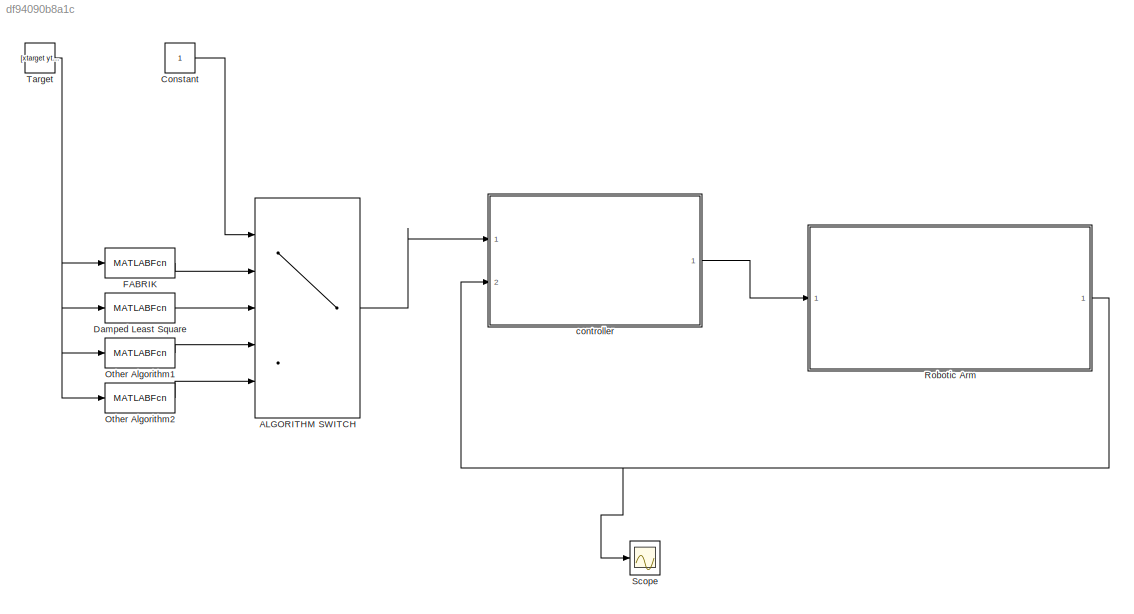
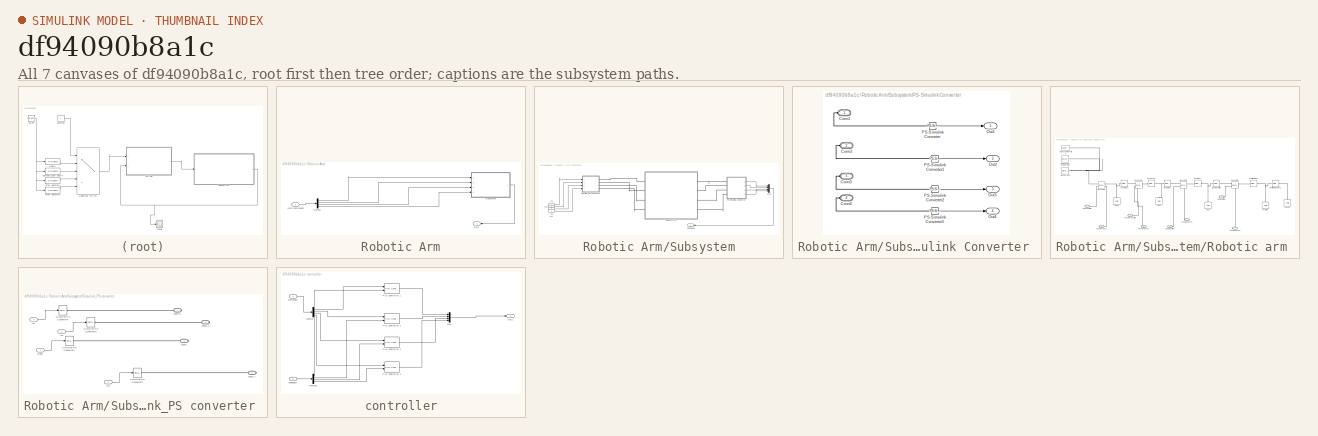
[diagram: thumbnail index - all 7 canvases of the model, root first then tree order]
MODEL slx_df94090b8a1c
KIND model
CONFIG AbsTol = auto
CONFIG EnableMultiTasking = off
CONFIG FixedStep = auto
CONFIG MaxStep = auto
CONFIG MinStep = auto
CONFIG RelTol = 1e-3
CONFIG SampleTimeConstraint = Unconstrained
CONFIG Solver = VariableStepAuto
CONFIG SolverName = VariableStepAuto
CONFIG StartTime = 0.0
CONFIG StopTime = 10.0
BLOCK [MultiPortSwitch] ALGORITHM SWITCH 
  InputSameDT = off
  Inputs = 4
  Ports = [5, 1]
  SaturateOnIntegerOverflow = off
BLOCK [Constant] Constant
BLOCK [MATLABFcn] Damped Least Square
  MATLABFcn = dampedLeastSquare
  Output1D = off
  OutputDimensions = 4
  Ports = [1, 1]
BLOCK [MATLABFcn] FABRIK 
  MATLABFcn = fcn
  Output1D = off
  OutputDimensions = 4
  Ports = [1, 1]
BLOCK [MATLABFcn] Other Algorithm1
  MATLABFcn = fcn
  Output1D = off
  OutputDimensions = 4
  Ports = [1, 1]
BLOCK [MATLABFcn] Other Algorithm2
  MATLABFcn = fcn
  Output1D = off
  OutputDimensions = 4
  Ports = [1, 1]
BLOCK [SubSystem] Robotic Arm
  Ports = [1, 1]
  RequestExecContextInheritance = off
BLOCK [Demux] Robotic Arm/Demux
  DisplayOption = bar
  Ports = [1, 4]
BLOCK [Outport] Robotic Arm/Out1
  IconDisplay = Port number
BLOCK [SubSystem] Robotic Arm/Subsystem
  Ports = [4, 1]
  RequestExecContextInheritance = off
BLOCK [Inport] Robotic Arm/Subsystem/In1
  IconDisplay = Port number
BLOCK [Inport] Robotic Arm/Subsystem/In2
  IconDisplay = Port number
  Port = 2
BLOCK [Inport] Robotic Arm/Subsystem/In3
  IconDisplay = Port number
  Port = 3
BLOCK [Inport] Robotic Arm/Subsystem/In4
  IconDisplay = Port number
  Port = 4
BLOCK [Mux] Robotic Arm/Subsystem/Mux
  DisplayOption = bar
  Ports = [4, 1]
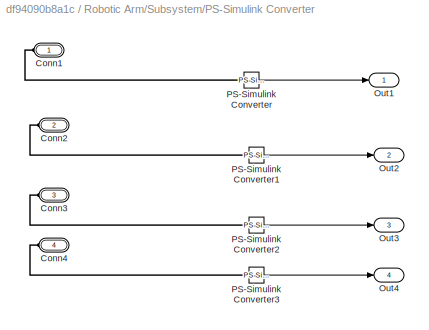
BLOCK [SubSystem] Robotic Arm/Subsystem/PS-Simulink Converter 
  Ports = [0, 4, 0, 0, 0, 4]
  RequestExecContextInheritance = off
BLOCK [PMIOPort] Robotic Arm/Subsystem/PS-Simulink Converter /Conn1
  Side = Left
BLOCK [PMIOPort] Robotic Arm/Subsystem/PS-Simulink Converter /Conn2
  Port = 2
  Side = Left
BLOCK [PMIOPort] Robotic Arm/Subsystem/PS-Simulink Converter /Conn3
  Port = 3
  Side = Left
BLOCK [PMIOPort] Robotic Arm/Subsystem/PS-Simulink Converter /Conn4
  Port = 4
  Side = Left
BLOCK [Outport] Robotic Arm/Subsystem/PS-Simulink Converter /Out1
  IconDisplay = Port number
BLOCK [Outport] Robotic Arm/Subsystem/PS-Simulink Converter /Out2
  IconDisplay = Port number
  Port = 2
BLOCK [Outport] Robotic Arm/Subsystem/PS-Simulink Converter /Out3
  IconDisplay = Port number
  Port = 3
BLOCK [Outport] Robotic Arm/Subsystem/PS-Simulink Converter /Out4
  IconDisplay = Port number
  Port = 4
BLOCK [Reference] Robotic Arm/Subsystem/PS-Simulink Converter /PS-Simulink Converter  REF=nesl_utility/PS-Simulink
Converter
  Ports = [0, 1, 0, 0, 0, 1]
  SourceBlock = nesl_utility/PS-Simulink\nConverter
  SourceProductBaseCode = SS
  SourceProductName = Simscape
  SourceType = PS-Simulink\nConverter
BLOCK [Reference] Robotic Arm/Subsystem/PS-Simulink Converter /PS-Simulink Converter1  REF=nesl_utility/PS-Simulink
Converter
  Ports = [0, 1, 0, 0, 0, 1]
  SourceBlock = nesl_utility/PS-Simulink\nConverter
  SourceProductBaseCode = SS
  SourceProductName = Simscape
  SourceType = PS-Simulink\nConverter
BLOCK [Reference] Robotic Arm/Subsystem/PS-Simulink Converter /PS-Simulink Converter2  REF=nesl_utility/PS-Simulink
Converter
  Ports = [0, 1, 0, 0, 0, 1]
  SourceBlock = nesl_utility/PS-Simulink\nConverter
  SourceProductBaseCode = SS
  SourceProductName = Simscape
  SourceType = PS-Simulink\nConverter
BLOCK [Reference] Robotic Arm/Subsystem/PS-Simulink Converter /PS-Simulink Converter3  REF=nesl_utility/PS-Simulink
Converter
  Ports = [0, 1, 0, 0, 0, 1]
  SourceBlock = nesl_utility/PS-Simulink\nConverter
  SourceProductBaseCode = SS
  SourceProductName = Simscape
  SourceType = PS-Simulink\nConverter
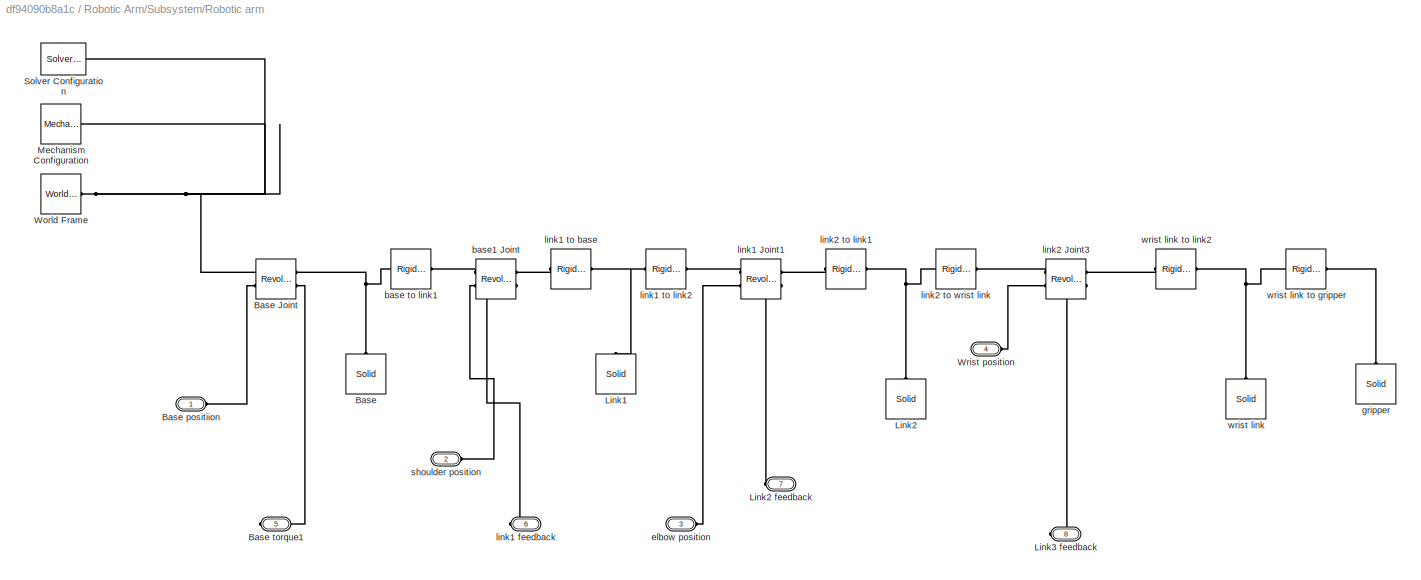
BLOCK [SubSystem] Robotic Arm/Subsystem/Robotic arm 
  Ports = [0, 0, 0, 0, 0, 4, 4]
  RequestExecContextInheritance = off
BLOCK [Reference] Robotic Arm/Subsystem/Robotic arm /Base  REF=sm_lib/Body Elements/Solid
  Ports = [0, 0, 0, 0, 0, 0, 1]
  SourceBlock = sm_lib/Body Elements/Solid
  SourceProductBaseCode = MS
  SourceProductName = Simscape Multibody
  SourceType = Solid
BLOCK [Reference] Robotic Arm/Subsystem/Robotic arm /Base Joint  REF=sm_lib/Joints/Revolute Joint
  Ports = [0, 0, 0, 0, 0, 2, 2]
  SourceBlock = sm_lib/Joints/Revolute Joint
  SourceProductBaseCode = MS
  SourceProductName = Simscape Multibody
  SourceType = Revolute Joint
BLOCK [PMIOPort] Robotic Arm/Subsystem/Robotic arm /Base positiion
  Side = Left
BLOCK [PMIOPort] Robotic Arm/Subsystem/Robotic arm /Base torque1
  Port = 5
  Side = Right
BLOCK [Reference] Robotic Arm/Subsystem/Robotic arm /Link1  REF=sm_lib/Body Elements/Solid
  Ports = [0, 0, 0, 0, 0, 0, 1]
  SourceBlock = sm_lib/Body Elements/Solid
  SourceProductBaseCode = MS
  SourceProductName = Simscape Multibody
  SourceType = Solid
BLOCK [Reference] Robotic Arm/Subsystem/Robotic arm /Link2  REF=sm_lib/Body Elements/Solid
  Ports = [0, 0, 0, 0, 0, 0, 1]
  SourceBlock = sm_lib/Body Elements/Solid
  SourceProductBaseCode = MS
  SourceProductName = Simscape Multibody
  SourceType = Solid
BLOCK [PMIOPort] Robotic Arm/Subsystem/Robotic arm /Link2 feedback
  Port = 7
  Side = Right
BLOCK [PMIOPort] Robotic Arm/Subsystem/Robotic arm /Link3 feedback
  Port = 8
  Side = Right
BLOCK [Reference] Robotic Arm/Subsystem/Robotic arm /Mechanism Configuration  REF=sm_lib/Utilities/Mechanism
Configuration
  Ports = [0, 0, 0, 0, 0, 0, 1]
  SourceBlock = sm_lib/Utilities/Mechanism\nConfiguration
  SourceProductBaseCode = MS
  SourceProductName = Simscape Multibody
  SourceType = Mechanism\nConfiguration
BLOCK [Reference] Robotic Arm/Subsystem/Robotic arm /Solver Configuration  REF=nesl_utility/Solver
Configuration
  Ports = [0, 0, 0, 0, 0, 0, 1]
  SourceBlock = nesl_utility/Solver\nConfiguration
  SourceProductBaseCode = SS
  SourceProductName = Simscape
  SourceType = Solver\nConfiguration
BLOCK [Reference] Robotic Arm/Subsystem/Robotic arm /World Frame  REF=sm_lib/Frames and
Transforms/World Frame
  Ports = [0, 0, 0, 0, 0, 0, 1]
  SourceBlock = sm_lib/Frames and\nTransforms/World Frame
  SourceProductBaseCode = MS
  SourceProductName = Simscape Multibody
  SourceType = World Frame
BLOCK [PMIOPort] Robotic Arm/Subsystem/Robotic arm /Wrist position
  Port = 4
  Side = Left
BLOCK [Reference] Robotic Arm/Subsystem/Robotic arm /base to link1   REF=sm_lib/Frames and
Transforms/Rigid
Transform
  Ports = [0, 0, 0, 0, 0, 1, 1]
  SourceBlock = sm_lib/Frames and\nTransforms/Rigid\nTransform
  SourceProductBaseCode = MS
  SourceProductName = Simscape Multibody
  SourceType = Rigid\nTransform
BLOCK [Reference] Robotic Arm/Subsystem/Robotic arm /base1 Joint  REF=sm_lib/Joints/Revolute Joint
  Ports = [0, 0, 0, 0, 0, 2, 2]
  SourceBlock = sm_lib/Joints/Revolute Joint
  SourceProductBaseCode = MS
  SourceProductName = Simscape Multibody
  SourceType = Revolute Joint
BLOCK [PMIOPort] Robotic Arm/Subsystem/Robotic arm /elbow position
  Port = 3
  Side = Left
BLOCK [Reference] Robotic Arm/Subsystem/Robotic arm /gripper  REF=sm_lib/Body Elements/Solid
  Ports = [0, 0, 0, 0, 0, 0, 1]
  SourceBlock = sm_lib/Body Elements/Solid
  SourceProductBaseCode = MS
  SourceProductName = Simscape Multibody
  SourceType = Solid
BLOCK [Reference] Robotic Arm/Subsystem/Robotic arm /link1 Joint1  REF=sm_lib/Joints/Revolute Joint
  Ports = [0, 0, 0, 0, 0, 2, 2]
  SourceBlock = sm_lib/Joints/Revolute Joint
  SourceProductBaseCode = MS
  SourceProductName = Simscape Multibody
  SourceType = Revolute Joint
BLOCK [PMIOPort] Robotic Arm/Subsystem/Robotic arm /link1 feedback
  Port = 6
  Side = Right
BLOCK [Reference] Robotic Arm/Subsystem/Robotic arm /link1 to base  REF=sm_lib/Frames and
Transforms/Rigid
Transform
  Ports = [0, 0, 0, 0, 0, 1, 1]
  SourceBlock = sm_lib/Frames and\nTransforms/Rigid\nTransform
  SourceProductBaseCode = MS
  SourceProductName = Simscape Multibody
  SourceType = Rigid\nTransform
BLOCK [Reference] Robotic Arm/Subsystem/Robotic arm /link1 to link2  REF=sm_lib/Frames and
Transforms/Rigid
Transform
  Ports = [0, 0, 0, 0, 0, 1, 1]
  SourceBlock = sm_lib/Frames and\nTransforms/Rigid\nTransform
  SourceProductBaseCode = MS
  SourceProductName = Simscape Multibody
  SourceType = Rigid\nTransform
BLOCK [Reference] Robotic Arm/Subsystem/Robotic arm /link2 Joint3  REF=sm_lib/Joints/Revolute Joint
  Ports = [0, 0, 0, 0, 0, 2, 2]
  SourceBlock = sm_lib/Joints/Revolute Joint
  SourceProductBaseCode = MS
  SourceProductName = Simscape Multibody
  SourceType = Revolute Joint
BLOCK [Reference] Robotic Arm/Subsystem/Robotic arm /link2 to link1  REF=sm_lib/Frames and
Transforms/Rigid
Transform
  Ports = [0, 0, 0, 0, 0, 1, 1]
  SourceBlock = sm_lib/Frames and\nTransforms/Rigid\nTransform
  SourceProductBaseCode = MS
  SourceProductName = Simscape Multibody
  SourceType = Rigid\nTransform
BLOCK [Reference] Robotic Arm/Subsystem/Robotic arm /link2 to wrist link  REF=sm_lib/Frames and
Transforms/Rigid
Transform
  Ports = [0, 0, 0, 0, 0, 1, 1]
  SourceBlock = sm_lib/Frames and\nTransforms/Rigid\nTransform
  SourceProductBaseCode = MS
  SourceProductName = Simscape Multibody
  SourceType = Rigid\nTransform
BLOCK [PMIOPort] Robotic Arm/Subsystem/Robotic arm /shoulder position
  Port = 2
  Side = Left
BLOCK [Reference] Robotic Arm/Subsystem/Robotic arm /wrist link  REF=sm_lib/Body Elements/Solid
  Ports = [0, 0, 0, 0, 0, 0, 1]
  SourceBlock = sm_lib/Body Elements/Solid
  SourceProductBaseCode = MS
  SourceProductName = Simscape Multibody
  SourceType = Solid
BLOCK [Reference] Robotic Arm/Subsystem/Robotic arm /wrist link to gripper  REF=sm_lib/Frames and
Transforms/Rigid
Transform
  Ports = [0, 0, 0, 0, 0, 1, 1]
  SourceBlock = sm_lib/Frames and\nTransforms/Rigid\nTransform
  SourceProductBaseCode = MS
  SourceProductName = Simscape Multibody
  SourceType = Rigid\nTransform
BLOCK [Reference] Robotic Arm/Subsystem/Robotic arm /wrist link to link2   REF=sm_lib/Frames and
Transforms/Rigid
Transform
  Ports = [0, 0, 0, 0, 0, 1, 1]
  SourceBlock = sm_lib/Frames and\nTransforms/Rigid\nTransform
  SourceProductBaseCode = MS
  SourceProductName = Simscape Multibody
  SourceType = Rigid\nTransform
BLOCK [SubSystem] Robotic Arm/Subsystem/Simulink_PS converter 
  Ports = [4, 0, 0, 0, 0, 0, 4]
  RequestExecContextInheritance = off
BLOCK [Inport] Robotic Arm/Subsystem/Simulink_PS converter /Base
  IconDisplay = Port number
BLOCK [Inport] Robotic Arm/Subsystem/Simulink_PS converter /In2
  IconDisplay = Port number
  Port = 2
BLOCK [Inport] Robotic Arm/Subsystem/Simulink_PS converter /In3
  IconDisplay = Port number
  Port = 3
BLOCK [Inport] Robotic Arm/Subsystem/Simulink_PS converter /In4
  IconDisplay = Port number
  Port = 4
BLOCK [Reference] Robotic Arm/Subsystem/Simulink_PS converter /Simulink-PS Converter1  REF=nesl_utility/Simulink-PS
Converter
  Ports = [1, 0, 0, 0, 0, 0, 1]
  SourceBlock = nesl_utility/Simulink-PS\nConverter
  SourceProductBaseCode = SS
  SourceProductName = Simscape
  SourceType = Simulink-PS\nConverter
BLOCK [Reference] Robotic Arm/Subsystem/Simulink_PS converter /Simulink-PS Converter2  REF=nesl_utility/Simulink-PS
Converter
  Ports = [1, 0, 0, 0, 0, 0, 1]
  SourceBlock = nesl_utility/Simulink-PS\nConverter
  SourceProductBaseCode = SS
  SourceProductName = Simscape
  SourceType = Simulink-PS\nConverter
BLOCK [Reference] Robotic Arm/Subsystem/Simulink_PS converter /Simulink-PS Converter3  REF=nesl_utility/Simulink-PS
Converter
  Ports = [1, 0, 0, 0, 0, 0, 1]
  SourceBlock = nesl_utility/Simulink-PS\nConverter
  SourceProductBaseCode = SS
  SourceProductName = Simscape
  SourceType = Simulink-PS\nConverter
BLOCK [Reference] Robotic Arm/Subsystem/Simulink_PS converter /Simulink-PS Converter4  REF=nesl_utility/Simulink-PS
Converter
  Ports = [1, 0, 0, 0, 0, 0, 1]
  SourceBlock = nesl_utility/Simulink-PS\nConverter
  SourceProductBaseCode = SS
  SourceProductName = Simscape
  SourceType = Simulink-PS\nConverter
BLOCK [PMIOPort] Robotic Arm/Subsystem/Simulink_PS converter /conn1 
  Side = Right
BLOCK [PMIOPort] Robotic Arm/Subsystem/Simulink_PS converter /conn1 1
  Port = 2
  Side = Right
BLOCK [PMIOPort] Robotic Arm/Subsystem/Simulink_PS converter /conn1 2
  Port = 3
  Side = Right
BLOCK [PMIOPort] Robotic Arm/Subsystem/Simulink_PS converter /conn1 3
  Port = 4
  Side = Right
BLOCK [Outport] Robotic Arm/Subsystem/feedback 
  IconDisplay = Port number
BLOCK [Inport] Robotic Arm/joint commands
  IconDisplay = Port number
BLOCK [Scope] Scope
  Floating = off
  NumInputPorts = 1
  Ports = [1]
  ScopeSpecificationString = Simulink.scopes.TimeScopeBlockCfg('CurrentConfiguration', extmgr.ConfigurationSet(extmgr.Configuration('Core','General UI',true),extmgr.Configuration('Core','Source UI',true),extmgr.Configuration('Sources','WiredSimulink',true),extmgr.Configuration('Visuals','Time Domain',true,'SerializedDisplays',{struct('MinYLimReal','-4.10618','MaxYLimReal','4.10618','YLabelReal','','MinYLimMag','0.00000','MaxY...<+1408ch>
BLOCK [Constant] Target
  Value = [xtarget ytarget ztarget]
BLOCK [SubSystem] controller
  Ports = [2, 1]
  RequestExecContextInheritance = off
  TreatAsAtomicUnit = on
BLOCK [Demux] controller/Demux
  DisplayOption = bar
  Ports = [1, 4]
BLOCK [Demux] controller/Demux1
  DisplayOption = bar
  Ports = [1, 4]
BLOCK [Inport] controller/Feedback 
  IconDisplay = Port number
  Port = 2
BLOCK [Mux] controller/Mux
  DisplayOption = bar
  Ports = [4, 1]
BLOCK [Outport] controller/Out1
  IconDisplay = Port number
BLOCK [Reference] controller/PID controller 1  REF=simulink/Continuous/PID Controller (2DOF)
  Ports = [2, 1]
  SourceBlock = simulink/Continuous/PID Controller (2DOF)
  SourceProductBaseCode = SL
  SourceProductName = Simulink
  SourceType = PID 2dof
BLOCK [Reference] controller/PID controller 2  REF=simulink/Continuous/PID Controller (2DOF)
  Ports = [2, 1]
  SourceBlock = simulink/Continuous/PID Controller (2DOF)
  SourceProductBaseCode = SL
  SourceProductName = Simulink
  SourceType = PID 2dof
BLOCK [Reference] controller/PID controller 3   REF=simulink/Continuous/PID Controller (2DOF)
  Ports = [2, 1]
  SourceBlock = simulink/Continuous/PID Controller (2DOF)
  SourceProductBaseCode = SL
  SourceProductName = Simulink
  SourceType = PID 2dof
BLOCK [Reference] controller/PID controller 4  REF=simulink/Continuous/PID Controller (2DOF)
  Ports = [2, 1]
  SourceBlock = simulink/Continuous/PID Controller (2DOF)
  SourceProductBaseCode = SL
  SourceProductName = Simulink
  SourceType = PID 2dof
BLOCK [Inport] controller/Refrence 
  IconDisplay = Port number
LINE ALGORITHM SWITCH :1 -> controller:1
LINE Constant:1 -> ALGORITHM SWITCH :1
LINE Damped Least Square:1 -> ALGORITHM SWITCH :3
LINE FABRIK :1 -> ALGORITHM SWITCH :2
LINE Other Algorithm1:1 -> ALGORITHM SWITCH :4
LINE Other Algorithm2:1 -> ALGORITHM SWITCH :5
LINE Robotic Arm/Demux:1 -> Robotic Arm/Subsystem:1
LINE Robotic Arm/Demux:2 -> Robotic Arm/Subsystem:2
LINE Robotic Arm/Demux:3 -> Robotic Arm/Subsystem:3
LINE Robotic Arm/Demux:4 -> Robotic Arm/Subsystem:4
LINE Robotic Arm/Subsystem/In1:1 -> Robotic Arm/Subsystem/Simulink_PS converter :1
LINE Robotic Arm/Subsystem/In2:1 -> Robotic Arm/Subsystem/Simulink_PS converter :2
LINE Robotic Arm/Subsystem/In3:1 -> Robotic Arm/Subsystem/Simulink_PS converter :3
LINE Robotic Arm/Subsystem/In4:1 -> Robotic Arm/Subsystem/Simulink_PS converter :4
LINE Robotic Arm/Subsystem/Mux:1 -> Robotic Arm/Subsystem/feedback :1
LINE Robotic Arm/Subsystem/PS-Simulink Converter /PS-Simulink Converter1:1 -> Robotic Arm/Subsystem/PS-Simulink Converter /Out2:1
LINE Robotic Arm/Subsystem/PS-Simulink Converter /PS-Simulink Converter2:1 -> Robotic Arm/Subsystem/PS-Simulink Converter /Out3:1
LINE Robotic Arm/Subsystem/PS-Simulink Converter /PS-Simulink Converter3:1 -> Robotic Arm/Subsystem/PS-Simulink Converter /Out4:1
LINE Robotic Arm/Subsystem/PS-Simulink Converter /PS-Simulink Converter:1 -> Robotic Arm/Subsystem/PS-Simulink Converter /Out1:1
LINE Robotic Arm/Subsystem/PS-Simulink Converter :1 -> Robotic Arm/Subsystem/Mux:1
LINE Robotic Arm/Subsystem/PS-Simulink Converter :2 -> Robotic Arm/Subsystem/Mux:2
LINE Robotic Arm/Subsystem/PS-Simulink Converter :3 -> Robotic Arm/Subsystem/Mux:3
LINE Robotic Arm/Subsystem/PS-Simulink Converter :4 -> Robotic Arm/Subsystem/Mux:4
LINE Robotic Arm/Subsystem/Simulink_PS converter /Base:1 -> Robotic Arm/Subsystem/Simulink_PS converter /Simulink-PS Converter1:1
LINE Robotic Arm/Subsystem/Simulink_PS converter /In2:1 -> Robotic Arm/Subsystem/Simulink_PS converter /Simulink-PS Converter2:1
LINE Robotic Arm/Subsystem/Simulink_PS converter /In3:1 -> Robotic Arm/Subsystem/Simulink_PS converter /Simulink-PS Converter3:1
LINE Robotic Arm/Subsystem/Simulink_PS converter /In4:1 -> Robotic Arm/Subsystem/Simulink_PS converter /Simulink-PS Converter4:1
LINE Robotic Arm/Subsystem:1 -> Robotic Arm/Out1:1
LINE Robotic Arm/joint commands:1 -> Robotic Arm/Demux:1
NET Robotic Arm:1 -> Scope:1, controller:2
NET Target:1 -> Damped Least Square:1, FABRIK :1, Other Algorithm1:1, Other Algorithm2:1
LINE controller/Demux1:1 -> controller/PID controller 1:2
LINE controller/Demux1:2 -> controller/PID controller 2:2
LINE controller/Demux1:3 -> controller/PID controller 3 :2
LINE controller/Demux1:4 -> controller/PID controller 4:2
LINE controller/Demux:1 -> controller/PID controller 1:1
LINE controller/Demux:2 -> controller/PID controller 2:1
LINE controller/Demux:3 -> controller/PID controller 3 :1
LINE controller/Demux:4 -> controller/PID controller 4:1
LINE controller/Feedback :1 -> controller/Demux1:1
LINE controller/Mux:1 -> controller/Out1:1
LINE controller/PID controller 1:1 -> controller/Mux:1
LINE controller/PID controller 2:1 -> controller/Mux:2
LINE controller/PID controller 3 :1 -> controller/Mux:3
LINE controller/PID controller 4:1 -> controller/Mux:4
LINE controller/Refrence :1 -> controller/Demux:1
LINE controller:1 -> Robotic Arm:1
PLINE Robotic Arm/Subsystem/PS-Simulink Converter /Conn1:RConn1 -- Robotic Arm/Subsystem/PS-Simulink Converter /PS-Simulink Converter:LConn1
PLINE Robotic Arm/Subsystem/PS-Simulink Converter /Conn2:RConn1 -- Robotic Arm/Subsystem/PS-Simulink Converter /PS-Simulink Converter1:LConn1
PLINE Robotic Arm/Subsystem/PS-Simulink Converter /Conn3:RConn1 -- Robotic Arm/Subsystem/PS-Simulink Converter /PS-Simulink Converter2:LConn1
PLINE Robotic Arm/Subsystem/PS-Simulink Converter /Conn4:RConn1 -- Robotic Arm/Subsystem/PS-Simulink Converter /PS-Simulink Converter3:LConn1
PLINE Robotic Arm/Subsystem/PS-Simulink Converter :LConn1 -- Robotic Arm/Subsystem/Robotic arm :RConn1
PLINE Robotic Arm/Subsystem/PS-Simulink Converter :LConn2 -- Robotic Arm/Subsystem/Robotic arm :RConn2
PLINE Robotic Arm/Subsystem/PS-Simulink Converter :LConn3 -- Robotic Arm/Subsystem/Robotic arm :RConn3
PLINE Robotic Arm/Subsystem/PS-Simulink Converter :LConn4 -- Robotic Arm/Subsystem/Robotic arm :RConn4
PNET net1: Robotic Arm/Subsystem/Robotic arm /Base Joint:LConn1 -- Robotic Arm/Subsystem/Robotic arm /Mechanism Configuration:RConn1 -- Robotic Arm/Subsystem/Robotic arm /Solver Configuration:RConn1 -- Robotic Arm/Subsystem/Robotic arm /World Frame:RConn1
PLINE Robotic Arm/Subsystem/Robotic arm /Base Joint:LConn2 -- Robotic Arm/Subsystem/Robotic arm /Base positiion:RConn1
PNET net2: Robotic Arm/Subsystem/Robotic arm /Base Joint:RConn1 -- Robotic Arm/Subsystem/Robotic arm /Base:RConn1 -- Robotic Arm/Subsystem/Robotic arm /base to link1 :LConn1
PLINE Robotic Arm/Subsystem/Robotic arm /Base Joint:RConn2 -- Robotic Arm/Subsystem/Robotic arm /Base torque1:RConn1
PNET net3: Robotic Arm/Subsystem/Robotic arm /Link1:RConn1 -- Robotic Arm/Subsystem/Robotic arm /link1 to base:LConn1 -- Robotic Arm/Subsystem/Robotic arm /link1 to link2:LConn1
PLINE Robotic Arm/Subsystem/Robotic arm /Link2 feedback:RConn1 -- Robotic Arm/Subsystem/Robotic arm /link1 Joint1:RConn2
PNET net4: Robotic Arm/Subsystem/Robotic arm /Link2:RConn1 -- Robotic Arm/Subsystem/Robotic arm /link2 to link1:LConn1 -- Robotic Arm/Subsystem/Robotic arm /link2 to wrist link:LConn1
PLINE Robotic Arm/Subsystem/Robotic arm /Link3 feedback:RConn1 -- Robotic Arm/Subsystem/Robotic arm /link2 Joint3:RConn2
PLINE Robotic Arm/Subsystem/Robotic arm /Wrist position:RConn1 -- Robotic Arm/Subsystem/Robotic arm /link2 Joint3:LConn2
PLINE Robotic Arm/Subsystem/Robotic arm /base to link1 :RConn1 -- Robotic Arm/Subsystem/Robotic arm /base1 Joint:LConn1
PLINE Robotic Arm/Subsystem/Robotic arm /base1 Joint:LConn2 -- Robotic Arm/Subsystem/Robotic arm /shoulder position:RConn1
PLINE Robotic Arm/Subsystem/Robotic arm /base1 Joint:RConn1 -- Robotic Arm/Subsystem/Robotic arm /link1 to base:RConn1
PLINE Robotic Arm/Subsystem/Robotic arm /base1 Joint:RConn2 -- Robotic Arm/Subsystem/Robotic arm /link1 feedback:RConn1
PLINE Robotic Arm/Subsystem/Robotic arm /elbow position:RConn1 -- Robotic Arm/Subsystem/Robotic arm /link1 Joint1:LConn2
PLINE Robotic Arm/Subsystem/Robotic arm /gripper:RConn1 -- Robotic Arm/Subsystem/Robotic arm /wrist link to gripper:RConn1
PLINE Robotic Arm/Subsystem/Robotic arm /link1 Joint1:LConn1 -- Robotic Arm/Subsystem/Robotic arm /link1 to link2:RConn1
PLINE Robotic Arm/Subsystem/Robotic arm /link1 Joint1:RConn1 -- Robotic Arm/Subsystem/Robotic arm /link2 to link1:RConn1
PLINE Robotic Arm/Subsystem/Robotic arm /link2 Joint3:LConn1 -- Robotic Arm/Subsystem/Robotic arm /link2 to wrist link:RConn1
PLINE Robotic Arm/Subsystem/Robotic arm /link2 Joint3:RConn1 -- Robotic Arm/Subsystem/Robotic arm /wrist link to link2 :RConn1
PNET net5: Robotic Arm/Subsystem/Robotic arm /wrist link to gripper:LConn1 -- Robotic Arm/Subsystem/Robotic arm /wrist link to link2 :LConn1 -- Robotic Arm/Subsystem/Robotic arm /wrist link:RConn1
PLINE Robotic Arm/Subsystem/Robotic arm :LConn1 -- Robotic Arm/Subsystem/Simulink_PS converter :RConn1
PLINE Robotic Arm/Subsystem/Robotic arm :LConn2 -- Robotic Arm/Subsystem/Simulink_PS converter :RConn2
PLINE Robotic Arm/Subsystem/Robotic arm :LConn3 -- Robotic Arm/Subsystem/Simulink_PS converter :RConn3
PLINE Robotic Arm/Subsystem/Robotic arm :LConn4 -- Robotic Arm/Subsystem/Simulink_PS converter :RConn4
PLINE Robotic Arm/Subsystem/Simulink_PS converter /Simulink-PS Converter1:RConn1 -- Robotic Arm/Subsystem/Simulink_PS converter /conn1 :RConn1
PLINE Robotic Arm/Subsystem/Simulink_PS converter /Simulink-PS Converter2:RConn1 -- Robotic Arm/Subsystem/Simulink_PS converter /conn1 1:RConn1
PLINE Robotic Arm/Subsystem/Simulink_PS converter /Simulink-PS Converter3:RConn1 -- Robotic Arm/Subsystem/Simulink_PS converter /conn1 2:RConn1
PLINE Robotic Arm/Subsystem/Simulink_PS converter /Simulink-PS Converter4:RConn1 -- Robotic Arm/Subsystem/Simulink_PS converter /conn1 3:RConn1
note: NET lines group one-source signal fan-out (src -> all destinations, sorted); 1:1 wires keep LINE; PNET lines group multi-terminal physical nets as a canonical sorted terminal list (undirected conserving connections); 2-terminal nets keep the pairwise PLINE form
